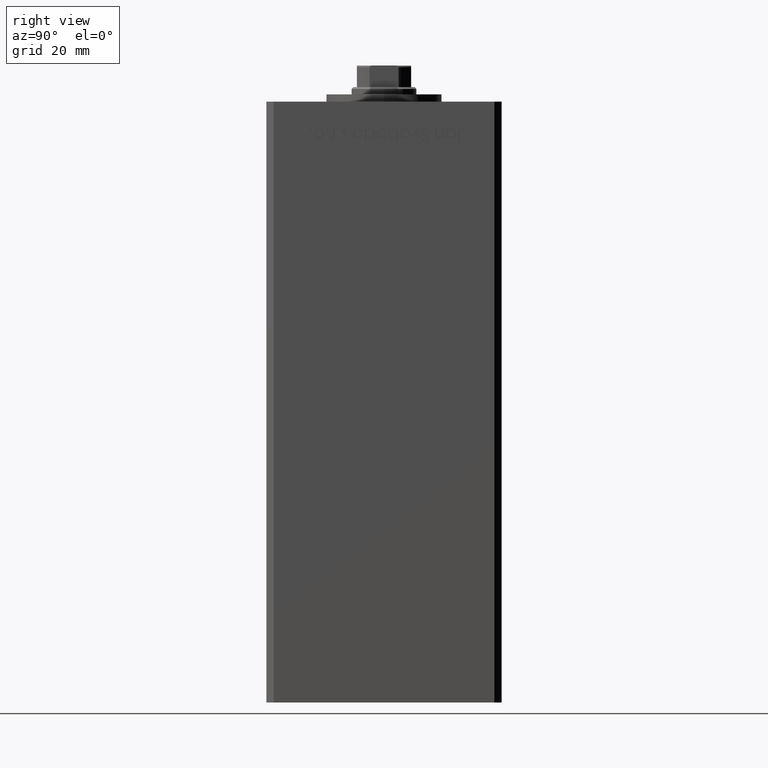
[diagram: clean part render]
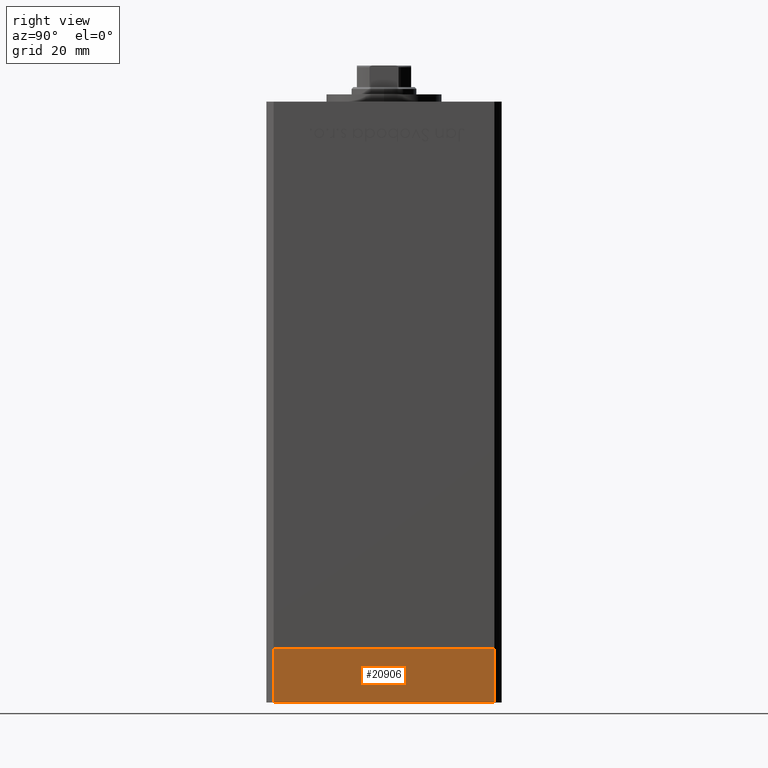
[diagram: same view with one face highlighted and labeled with its STEP entity id]
A machine part, right view. The second image highlights one B-rep face of the part: STEP entity #20906.
In plain terms, the highlighted planar face has unit normal (1, -0, 0).
Its self-contained STEP definition (entity closure, byte-faithful):
#922 = LINE ( 'NONE', #41555, #31332 ) ;
#3220 = VERTEX_POINT ( 'NONE', #21456 ) ;
#4413 = CARTESIAN_POINT ( 'NONE',  ( -37.50000000000001421, 30.49999999999998579, -15.00000000000000000 ) ) ;
#9227 = CARTESIAN_POINT ( 'NONE',  ( -37.50000000000001421, 30.49999999999998579, -15.00000000000000000 ) ) ;
#9252 = LINE ( 'NONE', #25359, #14370 ) ;
#11645 = VERTEX_POINT ( 'NONE', #32469 ) ;
#14370 = VECTOR ( 'NONE', #49644, 1000.000000000000000 ) ;
#17151 = ORIENTED_EDGE ( 'NONE', *, *, #33551, .F. ) ;
#17590 = VERTEX_POINT ( 'NONE', #40870 ) ;
#20185 = EDGE_CURVE ( 'NONE', #17590, #3220, #20242, .T. ) ;
#20242 = LINE ( 'NONE', #4413, #35077 ) ;
#20756 = VERTEX_POINT ( 'NONE', #43107 ) ;
#20906 = ADVANCED_FACE ( 'NONE', ( #36718 ), #24043, .T. ) ;
#21456 = CARTESIAN_POINT ( 'NONE',  ( -37.49999999999998579, -30.50000000000001421, -15.00000000000000000 ) ) ;
#24043 = PLANE ( 'NONE',  #51971 ) ;
#24812 = LINE ( 'NONE', #9227, #25222 ) ;
#25222 = VECTOR ( 'NONE', #25333, 1000.000000000000000 ) ;
#25333 = DIRECTION ( 'NONE',  ( 0.000000000000000000, 0.000000000000000000, 1.000000000000000000 ) ) ;
#25359 = CARTESIAN_POINT ( 'NONE',  ( -37.50000000000001421, 30.49999999999998579, 0.000000000000000000 ) ) ;
#28160 = DIRECTION ( 'NONE',  ( 4.550094363217855288E-16, -1.000000000000000000, 0.000000000000000000 ) ) ;
#28542 = EDGE_LOOP ( 'NONE', ( #41870, #17151, #35898, #48222 ) ) ;
#29053 = DIRECTION ( 'NONE',  ( 4.550094363217855288E-16, -1.000000000000000000, 0.000000000000000000 ) ) ;
#31332 = VECTOR ( 'NONE', #41297, 1000.000000000000000 ) ;
#32469 = CARTESIAN_POINT ( 'NONE',  ( -37.49999999999998579, -30.50000000000001421, 0.000000000000000000 ) ) ;
#33551 = EDGE_CURVE ( 'NONE', #17590, #20756, #24812, .T. ) ;
#35077 = VECTOR ( 'NONE', #28160, 1000.000000000000000 ) ;
#35898 = ORIENTED_EDGE ( 'NONE', *, *, #20185, .T. ) ;
#36718 = FACE_OUTER_BOUND ( 'NONE', #28542, .T. ) ;
#40870 = CARTESIAN_POINT ( 'NONE',  ( -37.50000000000001421, 30.49999999999998579, -15.00000000000000000 ) ) ;
#41297 = DIRECTION ( 'NONE',  ( 0.000000000000000000, 0.000000000000000000, 1.000000000000000000 ) ) ;
#41459 = EDGE_CURVE ( 'NONE', #20756, #11645, #9252, .T. ) ;
#41555 = CARTESIAN_POINT ( 'NONE',  ( -37.49999999999998579, -30.50000000000001421, -15.00000000000000000 ) ) ;
#41870 = ORIENTED_EDGE ( 'NONE', *, *, #41459, .F. ) ;
#43107 = CARTESIAN_POINT ( 'NONE',  ( -37.50000000000001421, 30.49999999999998579, 0.000000000000000000 ) ) ;
#46465 = EDGE_CURVE ( 'NONE', #3220, #11645, #922, .T. ) ;
#48222 = ORIENTED_EDGE ( 'NONE', *, *, #46465, .T. ) ;
#48332 = DIRECTION ( 'NONE',  ( -1.000000000000000000, -4.550094363217855288E-16, 0.000000000000000000 ) ) ;
#48578 = CARTESIAN_POINT ( 'NONE',  ( -37.50000000000001421, 30.49999999999998579, -15.00000000000000000 ) ) ;
#49644 = DIRECTION ( 'NONE',  ( 4.550094363217855288E-16, -1.000000000000000000, 0.000000000000000000 ) ) ;
#51971 = AXIS2_PLACEMENT_3D ( 'NONE', #48578, #48332, #29053 ) ;